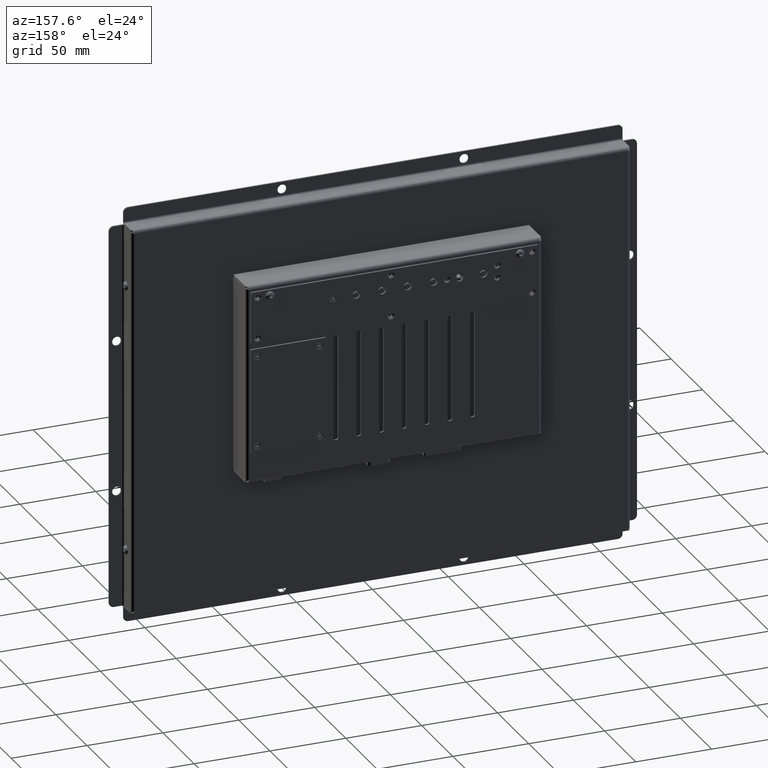
[diagram: clean part render]
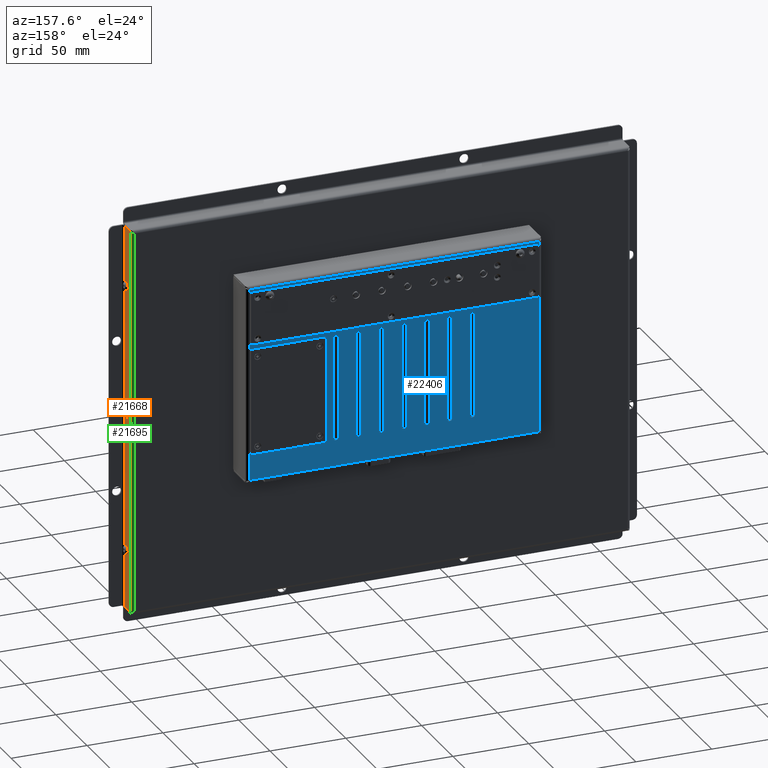
[diagram: same view with three faces highlighted in distinct colors, each labeled with its STEP entity id]
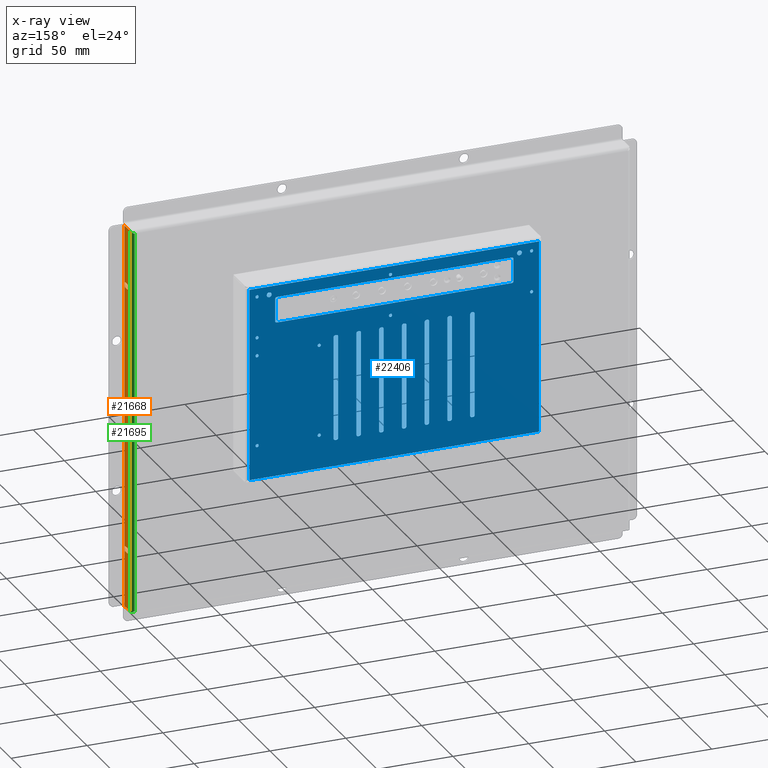
[diagram: x-ray of the same camera — body ghosted, the three highlighted faces saturated]
A machine part, auxiliary view with three faces highlighted in distinct colors.
The next image is the same camera in x-ray (body ghosted, the three faces saturated) — at least one of them is partly hidden behind the body in this view.
Their STEP definitions:

[orange] entity #21668 — the highlighted planar face has unit normal (-1, 0, -0).
#1406=FACE_BOUND('',#3706,.T.);
#1407=FACE_BOUND('',#3707,.T.);
#1774=PLANE('',#23404);
#2478=FACE_OUTER_BOUND('',#3705,.T.);
#3705=EDGE_LOOP('',(#15529,#15530,#15531,#15532));
#3706=EDGE_LOOP('',(#15533,#15534,#15535,#15536,#15537,#15538,#15539,#15540));
#3707=EDGE_LOOP('',(#15541,#15542,#15543,#15544,#15545,#15546,#15547,#15548));
#5154=LINE('',#31403,#7006);
#5158=LINE('',#31415,#7010);
#5162=LINE('',#31427,#7014);
#5166=LINE('',#31438,#7018);
#5170=LINE('',#31451,#7022);
#5174=LINE('',#31463,#7026);
#5178=LINE('',#31475,#7030);
#5182=LINE('',#31486,#7034);
#5311=LINE('',#31915,#7163);
#5318=LINE('',#31938,#7170);
#5319=LINE('',#31940,#7171);
#5320=LINE('',#31941,#7172);
#7006=VECTOR('',#25412,10.);
#7010=VECTOR('',#25424,10.);
#7014=VECTOR('',#25436,10.);
#7018=VECTOR('',#25448,10.);
#7022=VECTOR('',#25460,10.);
#7026=VECTOR('',#25472,10.);
#7030=VECTOR('',#25484,10.);
#7034=VECTOR('',#25496,10.);
#7163=VECTOR('',#25945,10.);
#7170=VECTOR('',#25974,10.);
#7171=VECTOR('',#25975,10.);
#7172=VECTOR('',#25976,10.);
#8824=CIRCLE('',#23203,0.999999999999996);
#8826=CIRCLE('',#23207,0.999999999999994);
#8828=CIRCLE('',#23211,0.999999999999996);
#8830=CIRCLE('',#23215,0.999999999999996);
#8832=CIRCLE('',#23219,1.00000000000002);
#8834=CIRCLE('',#23223,1.00000000000001);
#8836=CIRCLE('',#23227,1.00000000000001);
#8838=CIRCLE('',#23231,1.00000000000001);
#9794=VERTEX_POINT('',#31393);
#9795=VERTEX_POINT('',#31394);
#9798=VERTEX_POINT('',#31402);
#9800=VERTEX_POINT('',#31408);
#9802=VERTEX_POINT('',#31414);
#9804=VERTEX_POINT('',#31420);
#9806=VERTEX_POINT('',#31426);
#9808=VERTEX_POINT('',#31432);
#9810=VERTEX_POINT('',#31441);
#9811=VERTEX_POINT('',#31442);
#9814=VERTEX_POINT('',#31450);
#9816=VERTEX_POINT('',#31456);
#9818=VERTEX_POINT('',#31462);
#9820=VERTEX_POINT('',#31468);
#9822=VERTEX_POINT('',#31474);
#9824=VERTEX_POINT('',#31480);
#9964=VERTEX_POINT('',#31906);
#9965=VERTEX_POINT('',#31910);
#9970=VERTEX_POINT('',#31937);
#9971=VERTEX_POINT('',#31939);
#11928=EDGE_CURVE('',#9794,#9795,#8824,.T.);
#11932=EDGE_CURVE('',#9798,#9794,#5154,.T.);
#11935=EDGE_CURVE('',#9800,#9798,#8826,.T.);
#11938=EDGE_CURVE('',#9802,#9800,#5158,.T.);
#11941=EDGE_CURVE('',#9804,#9802,#8828,.T.);
#11944=EDGE_CURVE('',#9806,#9804,#5162,.T.);
#11947=EDGE_CURVE('',#9808,#9806,#8830,.T.);
#11950=EDGE_CURVE('',#9795,#9808,#5166,.T.);
#11952=EDGE_CURVE('',#9810,#9811,#8832,.T.);
#11956=EDGE_CURVE('',#9814,#9810,#5170,.T.);
#11959=EDGE_CURVE('',#9816,#9814,#8834,.T.);
#11962=EDGE_CURVE('',#9818,#9816,#5174,.T.);
#11965=EDGE_CURVE('',#9820,#9818,#8836,.T.);
#11968=EDGE_CURVE('',#9822,#9820,#5178,.T.);
#11971=EDGE_CURVE('',#9824,#9822,#8838,.T.);
#11974=EDGE_CURVE('',#9811,#9824,#5182,.T.);
#12187=EDGE_CURVE('',#9964,#9965,#5311,.T.);
#12198=EDGE_CURVE('',#9965,#9970,#5318,.T.);
#12199=EDGE_CURVE('',#9970,#9971,#5319,.T.);
#12200=EDGE_CURVE('',#9964,#9971,#5320,.T.);
#15529=ORIENTED_EDGE('',*,*,#12187,.T.);
#15530=ORIENTED_EDGE('',*,*,#12198,.T.);
#15531=ORIENTED_EDGE('',*,*,#12199,.T.);
#15532=ORIENTED_EDGE('',*,*,#12200,.F.);
#15533=ORIENTED_EDGE('',*,*,#11928,.T.);
#15534=ORIENTED_EDGE('',*,*,#11950,.T.);
#15535=ORIENTED_EDGE('',*,*,#11947,.T.);
#15536=ORIENTED_EDGE('',*,*,#11944,.T.);
#15537=ORIENTED_EDGE('',*,*,#11941,.T.);
#15538=ORIENTED_EDGE('',*,*,#11938,.T.);
#15539=ORIENTED_EDGE('',*,*,#11935,.T.);
#15540=ORIENTED_EDGE('',*,*,#11932,.T.);
#15541=ORIENTED_EDGE('',*,*,#11952,.T.);
#15542=ORIENTED_EDGE('',*,*,#11974,.T.);
#15543=ORIENTED_EDGE('',*,*,#11971,.T.);
#15544=ORIENTED_EDGE('',*,*,#11968,.T.);
#15545=ORIENTED_EDGE('',*,*,#11965,.T.);
#15546=ORIENTED_EDGE('',*,*,#11962,.T.);
#15547=ORIENTED_EDGE('',*,*,#11959,.T.);
#15548=ORIENTED_EDGE('',*,*,#11956,.T.);
#21668=ADVANCED_FACE('',(#2478,#1406,#1407),#1774,.F.);
#23203=AXIS2_PLACEMENT_3D('',#31395,#25404,#25405);
#23207=AXIS2_PLACEMENT_3D('',#31409,#25417,#25418);
#23211=AXIS2_PLACEMENT_3D('',#31421,#25429,#25430);
#23215=AXIS2_PLACEMENT_3D('',#31433,#25441,#25442);
#23219=AXIS2_PLACEMENT_3D('',#31443,#25452,#25453);
#23223=AXIS2_PLACEMENT_3D('',#31457,#25465,#25466);
#23227=AXIS2_PLACEMENT_3D('',#31469,#25477,#25478);
#23231=AXIS2_PLACEMENT_3D('',#31481,#25489,#25490);
#23404=AXIS2_PLACEMENT_3D('',#31936,#25972,#25973);
#25404=DIRECTION('center_axis',(-1.,-1.24732525066844E-18,-8.26411338742551E-15));
#25405=DIRECTION('ref_axis',(-9.70187209485073E-32,-1.,1.09282524669773E-17));
#25412=DIRECTION('',(1.24732525067141E-18,-1.,-3.59146089074741E-16));
#25417=DIRECTION('center_axis',(-1.,-1.24732525066844E-18,-8.26411338742551E-15));
#25418=DIRECTION('ref_axis',(8.88178419700113E-15,4.42996384603365E-15,
-1.));
#25424=DIRECTION('',(8.26411338742551E-15,-1.09282524669773E-17,-1.));
#25429=DIRECTION('center_axis',(-1.,-1.24732525066844E-18,-8.26411338742551E-15));
#25430=DIRECTION('ref_axis',(-1.96245039095769E-29,1.,2.20951779678333E-15));
#25436=DIRECTION('',(-1.24732525067446E-18,1.,7.29220430616463E-16));
#25441=DIRECTION('center_axis',(-1.,-1.24732525066844E-18,-8.26411338742551E-15));
#25442=DIRECTION('ref_axis',(-8.88178419700113E-15,1.09282524669773E-17,
1.));
#25448=DIRECTION('',(-8.26411338742551E-15,-1.4693691136999E-15,1.));
#25452=DIRECTION('center_axis',(-1.,-1.24732525066844E-18,-8.26411338742551E-15));
#25453=DIRECTION('ref_axis',(-9.70187209485055E-32,-1.,1.09282524669773E-17));
#25460=DIRECTION('',(1.24732525067141E-18,-1.,-3.5914608907471E-16));
#25465=DIRECTION('center_axis',(-1.,-1.24732525066844E-18,-8.26411338742551E-15));
#25466=DIRECTION('ref_axis',(8.88178419700113E-15,-1.09282524669773E-17,
-1.));
#25472=DIRECTION('',(8.26411338742551E-15,-1.09282524669773E-17,-1.));
#25477=DIRECTION('center_axis',(-1.,-1.24732525066844E-18,-8.26411338742551E-15));
#25478=DIRECTION('ref_axis',(-9.763742594314E-30,1.,1.09929477215816E-15));
#25484=DIRECTION('',(-1.24732525067446E-18,1.,7.29220430616397E-16));
#25489=DIRECTION('center_axis',(-1.,-1.24732525066844E-18,-8.26411338742551E-15));
#25490=DIRECTION('ref_axis',(-8.88178419700113E-15,1.09282524669773E-17,
1.));
#25496=DIRECTION('',(-8.26411338742551E-15,1.09282524669773E-17,1.));
#25945=DIRECTION('',(1.24732525066844E-18,-1.,1.10784736999074E-32));
#25972=DIRECTION('center_axis',(-1.,-1.24732525066844E-18,-8.26411338742551E-15));
#25973=DIRECTION('ref_axis',(-8.26411338742551E-15,0.,1.));
#25974=DIRECTION('',(8.88178419700126E-15,5.9211894646675E-15,-1.));
#25975=DIRECTION('',(-1.24732525066844E-18,1.,-1.10020970561212E-32));
#25976=DIRECTION('',(8.88178419700126E-15,8.88178419700126E-15,-1.));
#31393=CARTESIAN_POINT('',(164.5,-88.8000000000001,6.00000000000002));
#31394=CARTESIAN_POINT('',(164.5,-89.8000000000001,7.00000000000002));
#31395=CARTESIAN_POINT('Origin',(164.5,-88.8000000000001,7.00000000000002));
#31402=CARTESIAN_POINT('',(164.5,-87.3000000000001,6.00000000000002));
#31403=CARTESIAN_POINT('',(164.5,-43.6500000000001,6.00000000000003));
#31408=CARTESIAN_POINT('',(164.5,-86.3000000000001,7.00000000000002));
#31409=CARTESIAN_POINT('Origin',(164.5,-87.3000000000001,7.00000000000002));
#31414=CARTESIAN_POINT('',(164.5,-86.3000000000001,10.));
#31415=CARTESIAN_POINT('',(164.5,-86.3000000000001,8.43451332235383));
#31420=CARTESIAN_POINT('',(164.5,-87.3000000000001,11.));
#31421=CARTESIAN_POINT('Origin',(164.5,-87.3000000000001,10.));
#31426=CARTESIAN_POINT('',(164.5,-88.8000000000001,11.));
#31427=CARTESIAN_POINT('',(164.5,-44.4,11.0000000000001));
#31432=CARTESIAN_POINT('',(164.5,-89.8000000000001,10.));
#31433=CARTESIAN_POINT('Origin',(164.5,-88.8000000000001,10.));
#31438=CARTESIAN_POINT('',(164.5,-89.8000000000001,6.93451332235377));
#31441=CARTESIAN_POINT('',(164.5,87.1999999999997,6.00000000000001));
#31442=CARTESIAN_POINT('',(164.5,86.1999999999997,7.00000000000002));
#31443=CARTESIAN_POINT('Origin',(164.5,87.1999999999997,7.00000000000002));
#31450=CARTESIAN_POINT('',(164.5,88.6999999999998,6.00000000000002));
#31451=CARTESIAN_POINT('',(164.5,44.3499999999999,6.));
#31456=CARTESIAN_POINT('',(164.5,89.6999999999998,7.00000000000002));
#31457=CARTESIAN_POINT('Origin',(164.5,88.6999999999998,7.00000000000002));
#31462=CARTESIAN_POINT('',(164.5,89.6999999999998,10.));
#31463=CARTESIAN_POINT('',(164.5,89.6999999999998,8.43451332235383));
#31468=CARTESIAN_POINT('',(164.5,88.6999999999998,11.));
#31469=CARTESIAN_POINT('Origin',(164.5,88.6999999999998,10.));
#31474=CARTESIAN_POINT('',(164.5,87.1999999999997,11.));
#31475=CARTESIAN_POINT('',(164.5,43.5999999999998,11.));
#31480=CARTESIAN_POINT('',(164.5,86.1999999999997,10.));
#31481=CARTESIAN_POINT('Origin',(164.5,87.1999999999997,10.));
#31486=CARTESIAN_POINT('',(164.5,86.1999999999997,6.93451332235383));
#31906=CARTESIAN_POINT('',(164.5,126.99,12.));
#31910=CARTESIAN_POINT('',(164.5,-126.99,12.));
#31915=CARTESIAN_POINT('',(164.5,-63.495,12.));
#31936=CARTESIAN_POINT('Origin',(164.5,2.77555756156289E-15,6.86902664470765));
#31937=CARTESIAN_POINT('',(164.5,-126.99,2.00000000000006));
#31938=CARTESIAN_POINT('',(164.5,-126.99,2.00000000000004));
#31939=CARTESIAN_POINT('',(164.5,126.99,2.00000000000006));
#31940=CARTESIAN_POINT('',(164.5,1.38812803185163E-15,2.00000000000003));
#31941=CARTESIAN_POINT('',(164.5,126.99,2.00000000000004));

[blue] entity #22406 — the highlighted planar face has unit normal (0, 1, 0).
#1584=FACE_BOUND('',#4622,.T.);
#1585=FACE_BOUND('',#4623,.T.);
#1586=FACE_BOUND('',#4624,.T.);
#1587=FACE_BOUND('',#4625,.T.);
#1588=FACE_BOUND('',#4626,.T.);
#1589=FACE_BOUND('',#4627,.T.);
#1590=FACE_BOUND('',#4628,.T.);
#1591=FACE_BOUND('',#4629,.T.);
#1592=FACE_BOUND('',#4630,.T.);
#1593=FACE_BOUND('',#4631,.T.);
#1594=FACE_BOUND('',#4632,.T.);
#1595=FACE_BOUND('',#4633,.T.);
#1596=FACE_BOUND('',#4634,.T.);
#1597=FACE_BOUND('',#4635,.T.);
#1598=FACE_BOUND('',#4636,.T.);
#1599=FACE_BOUND('',#4637,.T.);
#1600=FACE_BOUND('',#4638,.T.);
#1601=FACE_BOUND('',#4639,.T.);
#1602=FACE_BOUND('',#4640,.T.);
#1603=FACE_BOUND('',#4641,.T.);
#2183=PLANE('',#24449);
#3216=FACE_OUTER_BOUND('',#4621,.T.);
#4621=EDGE_LOOP('',(#19515,#19516,#19517,#19518));
#4622=EDGE_LOOP('',(#19519,#19520));
#4623=EDGE_LOOP('',(#19521,#19522));
#4624=EDGE_LOOP('',(#19523,#19524));
#4625=EDGE_LOOP('',(#19525,#19526));
#4626=EDGE_LOOP('',(#19527,#19528));
#4627=EDGE_LOOP('',(#19529,#19530));
#4628=EDGE_LOOP('',(#19531,#19532,#19533,#19534,#19535,#19536,#19537,#19538));
#4629=EDGE_LOOP('',(#19539,#19540,#19541,#19542,#19543,#19544,#19545,#19546));
#4630=EDGE_LOOP('',(#19547,#19548,#19549,#19550,#19551,#19552,#19553,#19554));
#4631=EDGE_LOOP('',(#19555,#19556,#19557,#19558,#19559,#19560,#19561,#19562));
#4632=EDGE_LOOP('',(#19563,#19564,#19565,#19566,#19567,#19568,#19569,#19570));
#4633=EDGE_LOOP('',(#19571,#19572,#19573,#19574,#19575,#19576,#19577,#19578));
#4634=EDGE_LOOP('',(#19579,#19580,#19581,#19582,#19583,#19584,#19585,#19586));
#4635=EDGE_LOOP('',(#19587,#19588,#19589,#19590,#19591,#19592,#19593,#19594));
#4636=EDGE_LOOP('',(#19595));
#4637=EDGE_LOOP('',(#19596));
#4638=EDGE_LOOP('',(#19597));
#4639=EDGE_LOOP('',(#19598));
#4640=EDGE_LOOP('',(#19599));
#4641=EDGE_LOOP('',(#19600));
#6534=LINE('',#37887,#8386);
#6546=LINE('',#38227,#8398);
#6553=LINE('',#38408,#8405);
#6555=LINE('',#38411,#8407);
#6588=LINE('',#38559,#8440);
#6589=LINE('',#38563,#8441);
#6590=LINE('',#38567,#8442);
#6591=LINE('',#38570,#8443);
#6592=LINE('',#38575,#8444);
#6593=LINE('',#38579,#8445);
#6594=LINE('',#38583,#8446);
#6595=LINE('',#38586,#8447);
#6596=LINE('',#38591,#8448);
#6597=LINE('',#38595,#8449);
#6598=LINE('',#38599,#8450);
#6599=LINE('',#38602,#8451);
#6600=LINE('',#38607,#8452);
#6601=LINE('',#38611,#8453);
#6602=LINE('',#38615,#8454);
#6603=LINE('',#38618,#8455);
#6604=LINE('',#38623,#8456);
#6605=LINE('',#38627,#8457);
#6606=LINE('',#38631,#8458);
#6607=LINE('',#38634,#8459);
#6608=LINE('',#38639,#8460);
#6609=LINE('',#38643,#8461);
#6610=LINE('',#38647,#8462);
#6611=LINE('',#38650,#8463);
#6612=LINE('',#38655,#8464);
#6613=LINE('',#38659,#8465);
#6614=LINE('',#38663,#8466);
#6615=LINE('',#38666,#8467);
#6616=LINE('',#38671,#8468);
#6617=LINE('',#38675,#8469);
#6618=LINE('',#38679,#8470);
#6619=LINE('',#38682,#8471);
#8386=VECTOR('',#29174,10.);
#8398=VECTOR('',#29202,10.);
#8405=VECTOR('',#29215,10.);
#8407=VECTOR('',#29219,10.);
#8440=VECTOR('',#29336,10.);
#8441=VECTOR('',#29339,10.);
#8442=VECTOR('',#29342,10.);
#8443=VECTOR('',#29345,10.);
#8444=VECTOR('',#29348,10.);
#8445=VECTOR('',#29351,10.);
#8446=VECTOR('',#29354,10.);
#8447=VECTOR('',#29357,10.);
#8448=VECTOR('',#29360,10.);
#8449=VECTOR('',#29363,10.);
#8450=VECTOR('',#29366,10.);
#8451=VECTOR('',#29369,10.);
#8452=VECTOR('',#29372,10.);
#8453=VECTOR('',#29375,10.);
#8454=VECTOR('',#29378,10.);
#8455=VECTOR('',#29381,10.);
#8456=VECTOR('',#29384,10.);
#8457=VECTOR('',#29387,10.);
#8458=VECTOR('',#29390,10.);
#8459=VECTOR('',#29393,10.);
#8460=VECTOR('',#29396,10.);
#8461=VECTOR('',#29399,10.);
#8462=VECTOR('',#29402,10.);
#8463=VECTOR('',#29405,10.);
#8464=VECTOR('',#29408,10.);
#8465=VECTOR('',#29411,10.);
#8466=VECTOR('',#29414,10.);
#8467=VECTOR('',#29417,10.);
#8468=VECTOR('',#29420,10.);
#8469=VECTOR('',#29423,10.);
#8470=VECTOR('',#29426,10.);
#8471=VECTOR('',#29429,10.);
#9247=CIRCLE('',#24260,1.6);
#9248=CIRCLE('',#24261,1.6);
#9250=CIRCLE('',#24264,1.6);
#9251=CIRCLE('',#24265,1.6);
#9253=CIRCLE('',#24268,1.05);
#9254=CIRCLE('',#24269,1.05);
#9256=CIRCLE('',#24272,1.05);
#9257=CIRCLE('',#24273,1.05);
#9259=CIRCLE('',#24276,1.05);
#9260=CIRCLE('',#24277,1.05);
#9262=CIRCLE('',#24280,1.05);
#9263=CIRCLE('',#24281,1.05);
#9355=CIRCLE('',#24450,1.);
#9356=CIRCLE('',#24451,1.);
#9357=CIRCLE('',#24452,1.);
#9358=CIRCLE('',#24453,1.);
#9359=CIRCLE('',#24454,1.19999910351012);
#9360=CIRCLE('',#24455,1.19999910351011);
#9361=CIRCLE('',#24456,1.1999991035101);
#9362=CIRCLE('',#24457,1.19999910351012);
#9363=CIRCLE('',#24458,1.19999910351012);
#9364=CIRCLE('',#24459,1.19999910351011);
#9365=CIRCLE('',#24460,1.1999991035101);
#9366=CIRCLE('',#24461,1.19999910351012);
#9367=CIRCLE('',#24462,1.19999910351015);
#9368=CIRCLE('',#24463,1.19999910351011);
#9369=CIRCLE('',#24464,1.19999910351012);
#9370=CIRCLE('',#24465,1.19999910351012);
#9371=CIRCLE('',#24466,1.19999910351015);
#9372=CIRCLE('',#24467,1.19999910351011);
#9373=CIRCLE('',#24468,1.19999910351012);
#9374=CIRCLE('',#24469,1.19999910351012);
#9375=CIRCLE('',#24470,1.19999910351012);
#9376=CIRCLE('',#24471,1.19999910351011);
#9377=CIRCLE('',#24472,1.1999991035101);
#9378=CIRCLE('',#24473,1.19999910351012);
#9379=CIRCLE('',#24474,1.19999910351012);
#9380=CIRCLE('',#24475,1.19999910351011);
#9381=CIRCLE('',#24476,1.1999991035101);
#9382=CIRCLE('',#24477,1.19999910351012);
#9383=CIRCLE('',#24478,1.19999910351015);
#9384=CIRCLE('',#24479,1.19999910351011);
#9385=CIRCLE('',#24480,1.19999910351012);
#9386=CIRCLE('',#24481,1.19999910351012);
#9387=CIRCLE('',#24482,1.05);
#9388=CIRCLE('',#24483,1.05);
#9389=CIRCLE('',#24484,1.05);
#9390=CIRCLE('',#24485,1.05);
#9391=CIRCLE('',#24486,1.05);
#9392=CIRCLE('',#24487,1.05);
#11061=VERTEX_POINT('',#37450);
#11062=VERTEX_POINT('',#37451);
#11064=VERTEX_POINT('',#37458);
#11065=VERTEX_POINT('',#37459);
#11067=VERTEX_POINT('',#37466);
#11068=VERTEX_POINT('',#37467);
#11070=VERTEX_POINT('',#37474);
#11071=VERTEX_POINT('',#37475);
#11073=VERTEX_POINT('',#37482);
#11074=VERTEX_POINT('',#37483);
#11076=VERTEX_POINT('',#37490);
#11077=VERTEX_POINT('',#37491);
#11206=VERTEX_POINT('',#37871);
#11207=VERTEX_POINT('',#37879);
#11217=VERTEX_POINT('',#38211);
#11218=VERTEX_POINT('',#38219);
#11291=VERTEX_POINT('',#38555);
#11292=VERTEX_POINT('',#38556);
#11293=VERTEX_POINT('',#38558);
#11294=VERTEX_POINT('',#38560);
#11295=VERTEX_POINT('',#38562);
#11296=VERTEX_POINT('',#38564);
#11297=VERTEX_POINT('',#38566);
#11298=VERTEX_POINT('',#38568);
#11299=VERTEX_POINT('',#38571);
#11300=VERTEX_POINT('',#38572);
#11301=VERTEX_POINT('',#38574);
#11302=VERTEX_POINT('',#38576);
#11303=VERTEX_POINT('',#38578);
#11304=VERTEX_POINT('',#38580);
#11305=VERTEX_POINT('',#38582);
#11306=VERTEX_POINT('',#38584);
#11307=VERTEX_POINT('',#38587);
#11308=VERTEX_POINT('',#38588);
#11309=VERTEX_POINT('',#38590);
#11310=VERTEX_POINT('',#38592);
#11311=VERTEX_POINT('',#38594);
#11312=VERTEX_POINT('',#38596);
#11313=VERTEX_POINT('',#38598);
#11314=VERTEX_POINT('',#38600);
#11315=VERTEX_POINT('',#38603);
#11316=VERTEX_POINT('',#38604);
#11317=VERTEX_POINT('',#38606);
#11318=VERTEX_POINT('',#38608);
#11319=VERTEX_POINT('',#38610);
#11320=VERTEX_POINT('',#38612);
#11321=VERTEX_POINT('',#38614);
#11322=VERTEX_POINT('',#38616);
#11323=VERTEX_POINT('',#38619);
#11324=VERTEX_POINT('',#38620);
#11325=VERTEX_POINT('',#38622);
#11326=VERTEX_POINT('',#38624);
#11327=VERTEX_POINT('',#38626);
#11328=VERTEX_POINT('',#38628);
#11329=VERTEX_POINT('',#38630);
#11330=VERTEX_POINT('',#38632);
#11331=VERTEX_POINT('',#38635);
#11332=VERTEX_POINT('',#38636);
#11333=VERTEX_POINT('',#38638);
#11334=VERTEX_POINT('',#38640);
#11335=VERTEX_POINT('',#38642);
#11336=VERTEX_POINT('',#38644);
#11337=VERTEX_POINT('',#38646);
#11338=VERTEX_POINT('',#38648);
#11339=VERTEX_POINT('',#38651);
#11340=VERTEX_POINT('',#38652);
#11341=VERTEX_POINT('',#38654);
#11342=VERTEX_POINT('',#38656);
#11343=VERTEX_POINT('',#38658);
#11344=VERTEX_POINT('',#38660);
#11345=VERTEX_POINT('',#38662);
#11346=VERTEX_POINT('',#38664);
#11347=VERTEX_POINT('',#38667);
#11348=VERTEX_POINT('',#38668);
#11349=VERTEX_POINT('',#38670);
#11350=VERTEX_POINT('',#38672);
#11351=VERTEX_POINT('',#38674);
#11352=VERTEX_POINT('',#38676);
#11353=VERTEX_POINT('',#38678);
#11354=VERTEX_POINT('',#38680);
#11355=VERTEX_POINT('',#38683);
#11356=VERTEX_POINT('',#38685);
#11357=VERTEX_POINT('',#38687);
#11358=VERTEX_POINT('',#38689);
#11359=VERTEX_POINT('',#38691);
#11360=VERTEX_POINT('',#38693);
#13827=EDGE_CURVE('',#11061,#11062,#9247,.T.);
#13828=EDGE_CURVE('',#11062,#11061,#9248,.T.);
#13831=EDGE_CURVE('',#11064,#11065,#9250,.T.);
#13832=EDGE_CURVE('',#11065,#11064,#9251,.T.);
#13835=EDGE_CURVE('',#11067,#11068,#9253,.T.);
#13836=EDGE_CURVE('',#11068,#11067,#9254,.T.);
#13839=EDGE_CURVE('',#11070,#11071,#9256,.T.);
#13840=EDGE_CURVE('',#11071,#11070,#9257,.T.);
#13843=EDGE_CURVE('',#11073,#11074,#9259,.T.);
#13844=EDGE_CURVE('',#11074,#11073,#9260,.T.);
#13847=EDGE_CURVE('',#11076,#11077,#9262,.T.);
#13848=EDGE_CURVE('',#11077,#11076,#9263,.T.);
#14038=EDGE_CURVE('',#11206,#11207,#6534,.T.);
#14065=EDGE_CURVE('',#11217,#11218,#6546,.T.);
#14079=EDGE_CURVE('',#11218,#11206,#6553,.T.);
#14081=EDGE_CURVE('',#11207,#11217,#6555,.T.);
#14152=EDGE_CURVE('',#11291,#11292,#9355,.T.);
#14153=EDGE_CURVE('',#11292,#11293,#6588,.T.);
#14154=EDGE_CURVE('',#11293,#11294,#9356,.T.);
#14155=EDGE_CURVE('',#11294,#11295,#6589,.T.);
#14156=EDGE_CURVE('',#11295,#11296,#9357,.T.);
#14157=EDGE_CURVE('',#11296,#11297,#6590,.T.);
#14158=EDGE_CURVE('',#11297,#11298,#9358,.T.);
#14159=EDGE_CURVE('',#11298,#11291,#6591,.T.);
#14160=EDGE_CURVE('',#11299,#11300,#9359,.T.);
#14161=EDGE_CURVE('',#11300,#11301,#6592,.T.);
#14162=EDGE_CURVE('',#11301,#11302,#9360,.T.);
#14163=EDGE_CURVE('',#11302,#11303,#6593,.T.);
#14164=EDGE_CURVE('',#11303,#11304,#9361,.T.);
#14165=EDGE_CURVE('',#11304,#11305,#6594,.T.);
#14166=EDGE_CURVE('',#11305,#11306,#9362,.T.);
#14167=EDGE_CURVE('',#11306,#11299,#6595,.T.);
#14168=EDGE_CURVE('',#11307,#11308,#9363,.T.);
#14169=EDGE_CURVE('',#11308,#11309,#6596,.T.);
#14170=EDGE_CURVE('',#11309,#11310,#9364,.T.);
#14171=EDGE_CURVE('',#11310,#11311,#6597,.T.);
#14172=EDGE_CURVE('',#11311,#11312,#9365,.T.);
#14173=EDGE_CURVE('',#11312,#11313,#6598,.T.);
#14174=EDGE_CURVE('',#11313,#11314,#9366,.T.);
#14175=EDGE_CURVE('',#11314,#11307,#6599,.T.);
#14176=EDGE_CURVE('',#11315,#11316,#9367,.T.);
#14177=EDGE_CURVE('',#11316,#11317,#6600,.T.);
#14178=EDGE_CURVE('',#11317,#11318,#9368,.T.);
#14179=EDGE_CURVE('',#11318,#11319,#6601,.T.);
#14180=EDGE_CURVE('',#11319,#11320,#9369,.T.);
#14181=EDGE_CURVE('',#11320,#11321,#6602,.T.);
#14182=EDGE_CURVE('',#11321,#11322,#9370,.T.);
#14183=EDGE_CURVE('',#11322,#11315,#6603,.T.);
#14184=EDGE_CURVE('',#11323,#11324,#9371,.T.);
#14185=EDGE_CURVE('',#11324,#11325,#6604,.T.);
#14186=EDGE_CURVE('',#11325,#11326,#9372,.T.);
#14187=EDGE_CURVE('',#11326,#11327,#6605,.T.);
#14188=EDGE_CURVE('',#11327,#11328,#9373,.T.);
#14189=EDGE_CURVE('',#11328,#11329,#6606,.T.);
#14190=EDGE_CURVE('',#11329,#11330,#9374,.T.);
#14191=EDGE_CURVE('',#11330,#11323,#6607,.T.);
#14192=EDGE_CURVE('',#11331,#11332,#9375,.T.);
#14193=EDGE_CURVE('',#11332,#11333,#6608,.T.);
#14194=EDGE_CURVE('',#11333,#11334,#9376,.T.);
#14195=EDGE_CURVE('',#11334,#11335,#6609,.T.);
#14196=EDGE_CURVE('',#11335,#11336,#9377,.T.);
#14197=EDGE_CURVE('',#11336,#11337,#6610,.T.);
#14198=EDGE_CURVE('',#11337,#11338,#9378,.T.);
#14199=EDGE_CURVE('',#11338,#11331,#6611,.T.);
#14200=EDGE_CURVE('',#11339,#11340,#9379,.T.);
#14201=EDGE_CURVE('',#11340,#11341,#6612,.T.);
#14202=EDGE_CURVE('',#11341,#11342,#9380,.T.);
#14203=EDGE_CURVE('',#11342,#11343,#6613,.T.);
#14204=EDGE_CURVE('',#11343,#11344,#9381,.T.);
#14205=EDGE_CURVE('',#11344,#11345,#6614,.T.);
#14206=EDGE_CURVE('',#11345,#11346,#9382,.T.);
#14207=EDGE_CURVE('',#11346,#11339,#6615,.T.);
#14208=EDGE_CURVE('',#11347,#11348,#9383,.T.);
#14209=EDGE_CURVE('',#11348,#11349,#6616,.T.);
#14210=EDGE_CURVE('',#11349,#11350,#9384,.T.);
#14211=EDGE_CURVE('',#11350,#11351,#6617,.T.);
#14212=EDGE_CURVE('',#11351,#11352,#9385,.T.);
#14213=EDGE_CURVE('',#11352,#11353,#6618,.T.);
#14214=EDGE_CURVE('',#11353,#11354,#9386,.T.);
#14215=EDGE_CURVE('',#11354,#11347,#6619,.T.);
#14216=EDGE_CURVE('',#11355,#11355,#9387,.T.);
#14217=EDGE_CURVE('',#11356,#11356,#9388,.T.);
#14218=EDGE_CURVE('',#11357,#11357,#9389,.T.);
#14219=EDGE_CURVE('',#11358,#11358,#9390,.T.);
#14220=EDGE_CURVE('',#11359,#11359,#9391,.T.);
#14221=EDGE_CURVE('',#11360,#11360,#9392,.T.);
#19515=ORIENTED_EDGE('',*,*,#14079,.T.);
#19516=ORIENTED_EDGE('',*,*,#14038,.T.);
#19517=ORIENTED_EDGE('',*,*,#14081,.T.);
#19518=ORIENTED_EDGE('',*,*,#14065,.T.);
#19519=ORIENTED_EDGE('',*,*,#13827,.T.);
#19520=ORIENTED_EDGE('',*,*,#13828,.T.);
#19521=ORIENTED_EDGE('',*,*,#13831,.T.);
#19522=ORIENTED_EDGE('',*,*,#13832,.T.);
#19523=ORIENTED_EDGE('',*,*,#13835,.T.);
#19524=ORIENTED_EDGE('',*,*,#13836,.T.);
#19525=ORIENTED_EDGE('',*,*,#13839,.T.);
#19526=ORIENTED_EDGE('',*,*,#13840,.T.);
#19527=ORIENTED_EDGE('',*,*,#13843,.T.);
#19528=ORIENTED_EDGE('',*,*,#13844,.T.);
#19529=ORIENTED_EDGE('',*,*,#13847,.T.);
#19530=ORIENTED_EDGE('',*,*,#13848,.T.);
#19531=ORIENTED_EDGE('',*,*,#14152,.T.);
#19532=ORIENTED_EDGE('',*,*,#14153,.T.);
#19533=ORIENTED_EDGE('',*,*,#14154,.T.);
#19534=ORIENTED_EDGE('',*,*,#14155,.T.);
#19535=ORIENTED_EDGE('',*,*,#14156,.T.);
#19536=ORIENTED_EDGE('',*,*,#14157,.T.);
#19537=ORIENTED_EDGE('',*,*,#14158,.T.);
#19538=ORIENTED_EDGE('',*,*,#14159,.T.);
#19539=ORIENTED_EDGE('',*,*,#14160,.T.);
#19540=ORIENTED_EDGE('',*,*,#14161,.T.);
#19541=ORIENTED_EDGE('',*,*,#14162,.T.);
#19542=ORIENTED_EDGE('',*,*,#14163,.T.);
#19543=ORIENTED_EDGE('',*,*,#14164,.T.);
#19544=ORIENTED_EDGE('',*,*,#14165,.T.);
#19545=ORIENTED_EDGE('',*,*,#14166,.T.);
#19546=ORIENTED_EDGE('',*,*,#14167,.T.);
#19547=ORIENTED_EDGE('',*,*,#14168,.T.);
#19548=ORIENTED_EDGE('',*,*,#14169,.T.);
#19549=ORIENTED_EDGE('',*,*,#14170,.T.);
#19550=ORIENTED_EDGE('',*,*,#14171,.T.);
#19551=ORIENTED_EDGE('',*,*,#14172,.T.);
#19552=ORIENTED_EDGE('',*,*,#14173,.T.);
#19553=ORIENTED_EDGE('',*,*,#14174,.T.);
#19554=ORIENTED_EDGE('',*,*,#14175,.T.);
#19555=ORIENTED_EDGE('',*,*,#14176,.T.);
#19556=ORIENTED_EDGE('',*,*,#14177,.T.);
#19557=ORIENTED_EDGE('',*,*,#14178,.T.);
#19558=ORIENTED_EDGE('',*,*,#14179,.T.);
#19559=ORIENTED_EDGE('',*,*,#14180,.T.);
#19560=ORIENTED_EDGE('',*,*,#14181,.T.);
#19561=ORIENTED_EDGE('',*,*,#14182,.T.);
#19562=ORIENTED_EDGE('',*,*,#14183,.T.);
#19563=ORIENTED_EDGE('',*,*,#14184,.T.);
#19564=ORIENTED_EDGE('',*,*,#14185,.T.);
#19565=ORIENTED_EDGE('',*,*,#14186,.T.);
#19566=ORIENTED_EDGE('',*,*,#14187,.T.);
#19567=ORIENTED_EDGE('',*,*,#14188,.T.);
#19568=ORIENTED_EDGE('',*,*,#14189,.T.);
#19569=ORIENTED_EDGE('',*,*,#14190,.T.);
#19570=ORIENTED_EDGE('',*,*,#14191,.T.);
#19571=ORIENTED_EDGE('',*,*,#14192,.T.);
#19572=ORIENTED_EDGE('',*,*,#14193,.T.);
#19573=ORIENTED_EDGE('',*,*,#14194,.T.);
#19574=ORIENTED_EDGE('',*,*,#14195,.T.);
#19575=ORIENTED_EDGE('',*,*,#14196,.T.);
#19576=ORIENTED_EDGE('',*,*,#14197,.T.);
#19577=ORIENTED_EDGE('',*,*,#14198,.T.);
#19578=ORIENTED_EDGE('',*,*,#14199,.T.);
#19579=ORIENTED_EDGE('',*,*,#14200,.T.);
#19580=ORIENTED_EDGE('',*,*,#14201,.T.);
#19581=ORIENTED_EDGE('',*,*,#14202,.T.);
#19582=ORIENTED_EDGE('',*,*,#14203,.T.);
#19583=ORIENTED_EDGE('',*,*,#14204,.T.);
#19584=ORIENTED_EDGE('',*,*,#14205,.T.);
#19585=ORIENTED_EDGE('',*,*,#14206,.T.);
#19586=ORIENTED_EDGE('',*,*,#14207,.T.);
#19587=ORIENTED_EDGE('',*,*,#14208,.T.);
#19588=ORIENTED_EDGE('',*,*,#14209,.T.);
#19589=ORIENTED_EDGE('',*,*,#14210,.T.);
#19590=ORIENTED_EDGE('',*,*,#14211,.T.);
#19591=ORIENTED_EDGE('',*,*,#14212,.T.);
#19592=ORIENTED_EDGE('',*,*,#14213,.T.);
#19593=ORIENTED_EDGE('',*,*,#14214,.T.);
#19594=ORIENTED_EDGE('',*,*,#14215,.T.);
#19595=ORIENTED_EDGE('',*,*,#14216,.T.);
#19596=ORIENTED_EDGE('',*,*,#14217,.T.);
#19597=ORIENTED_EDGE('',*,*,#14218,.T.);
#19598=ORIENTED_EDGE('',*,*,#14219,.T.);
#19599=ORIENTED_EDGE('',*,*,#14220,.T.);
#19600=ORIENTED_EDGE('',*,*,#14221,.T.);
#22406=ADVANCED_FACE('',(#3216,#1584,#1585,#1586,#1587,#1588,#1589,#1590,
#1591,#1592,#1593,#1594,#1595,#1596,#1597,#1598,#1599,#1600,#1601,#1602,
#1603),#2183,.T.);
#24260=AXIS2_PLACEMENT_3D('',#37452,#28761,#28762);
#24261=AXIS2_PLACEMENT_3D('',#37453,#28763,#28764);
#24264=AXIS2_PLACEMENT_3D('',#37460,#28770,#28771);
#24265=AXIS2_PLACEMENT_3D('',#37461,#28772,#28773);
#24268=AXIS2_PLACEMENT_3D('',#37468,#28779,#28780);
#24269=AXIS2_PLACEMENT_3D('',#37469,#28781,#28782);
#24272=AXIS2_PLACEMENT_3D('',#37476,#28788,#28789);
#24273=AXIS2_PLACEMENT_3D('',#37477,#28790,#28791);
#24276=AXIS2_PLACEMENT_3D('',#37484,#28797,#28798);
#24277=AXIS2_PLACEMENT_3D('',#37485,#28799,#28800);
#24280=AXIS2_PLACEMENT_3D('',#37492,#28806,#28807);
#24281=AXIS2_PLACEMENT_3D('',#37493,#28808,#28809);
#24449=AXIS2_PLACEMENT_3D('',#38554,#29332,#29333);
#24450=AXIS2_PLACEMENT_3D('',#38557,#29334,#29335);
#24451=AXIS2_PLACEMENT_3D('',#38561,#29337,#29338);
#24452=AXIS2_PLACEMENT_3D('',#38565,#29340,#29341);
#24453=AXIS2_PLACEMENT_3D('',#38569,#29343,#29344);
#24454=AXIS2_PLACEMENT_3D('',#38573,#29346,#29347);
#24455=AXIS2_PLACEMENT_3D('',#38577,#29349,#29350);
#24456=AXIS2_PLACEMENT_3D('',#38581,#29352,#29353);
#24457=AXIS2_PLACEMENT_3D('',#38585,#29355,#29356);
#24458=AXIS2_PLACEMENT_3D('',#38589,#29358,#29359);
#24459=AXIS2_PLACEMENT_3D('',#38593,#29361,#29362);
#24460=AXIS2_PLACEMENT_3D('',#38597,#29364,#29365);
#24461=AXIS2_PLACEMENT_3D('',#38601,#29367,#29368);
#24462=AXIS2_PLACEMENT_3D('',#38605,#29370,#29371);
#24463=AXIS2_PLACEMENT_3D('',#38609,#29373,#29374);
#24464=AXIS2_PLACEMENT_3D('',#38613,#29376,#29377);
#24465=AXIS2_PLACEMENT_3D('',#38617,#29379,#29380);
#24466=AXIS2_PLACEMENT_3D('',#38621,#29382,#29383);
#24467=AXIS2_PLACEMENT_3D('',#38625,#29385,#29386);
#24468=AXIS2_PLACEMENT_3D('',#38629,#29388,#29389);
#24469=AXIS2_PLACEMENT_3D('',#38633,#29391,#29392);
#24470=AXIS2_PLACEMENT_3D('',#38637,#29394,#29395);
#24471=AXIS2_PLACEMENT_3D('',#38641,#29397,#29398);
#24472=AXIS2_PLACEMENT_3D('',#38645,#29400,#29401);
#24473=AXIS2_PLACEMENT_3D('',#38649,#29403,#29404);
#24474=AXIS2_PLACEMENT_3D('',#38653,#29406,#29407);
#24475=AXIS2_PLACEMENT_3D('',#38657,#29409,#29410);
#24476=AXIS2_PLACEMENT_3D('',#38661,#29412,#29413);
#24477=AXIS2_PLACEMENT_3D('',#38665,#29415,#29416);
#24478=AXIS2_PLACEMENT_3D('',#38669,#29418,#29419);
#24479=AXIS2_PLACEMENT_3D('',#38673,#29421,#29422);
#24480=AXIS2_PLACEMENT_3D('',#38677,#29424,#29425);
#24481=AXIS2_PLACEMENT_3D('',#38681,#29427,#29428);
#24482=AXIS2_PLACEMENT_3D('',#38684,#29430,#29431);
#24483=AXIS2_PLACEMENT_3D('',#38686,#29432,#29433);
#24484=AXIS2_PLACEMENT_3D('',#38688,#29434,#29435);
#24485=AXIS2_PLACEMENT_3D('',#38690,#29436,#29437);
#24486=AXIS2_PLACEMENT_3D('',#38692,#29438,#29439);
#24487=AXIS2_PLACEMENT_3D('',#38694,#29440,#29441);
#28761=DIRECTION('center_axis',(0.,0.,-1.));
#28762=DIRECTION('ref_axis',(1.,0.,0.));
#28763=DIRECTION('center_axis',(0.,0.,-1.));
#28764=DIRECTION('ref_axis',(1.,0.,0.));
#28770=DIRECTION('center_axis',(0.,0.,-1.));
#28771=DIRECTION('ref_axis',(1.,0.,0.));
#28772=DIRECTION('center_axis',(0.,0.,-1.));
#28773=DIRECTION('ref_axis',(1.,0.,0.));
#28779=DIRECTION('center_axis',(0.,0.,-1.));
#28780=DIRECTION('ref_axis',(1.,0.,0.));
#28781=DIRECTION('center_axis',(0.,0.,-1.));
#28782=DIRECTION('ref_axis',(1.,0.,0.));
#28788=DIRECTION('center_axis',(0.,0.,-1.));
#28789=DIRECTION('ref_axis',(1.,0.,0.));
#28790=DIRECTION('center_axis',(0.,0.,-1.));
#28791=DIRECTION('ref_axis',(1.,0.,0.));
#28797=DIRECTION('center_axis',(0.,0.,-1.));
#28798=DIRECTION('ref_axis',(1.,0.,0.));
#28799=DIRECTION('center_axis',(0.,0.,-1.));
#28800=DIRECTION('ref_axis',(1.,0.,0.));
#28806=DIRECTION('center_axis',(0.,0.,-1.));
#28807=DIRECTION('ref_axis',(1.,0.,0.));
#28808=DIRECTION('center_axis',(0.,0.,-1.));
#28809=DIRECTION('ref_axis',(1.,0.,0.));
#29174=DIRECTION('',(-1.,0.,0.));
#29202=DIRECTION('',(1.,0.,0.));
#29215=DIRECTION('',(0.,1.,0.));
#29219=DIRECTION('',(0.,-1.,0.));
#29332=DIRECTION('center_axis',(0.,0.,1.));
#29333=DIRECTION('ref_axis',(1.,0.,0.));
#29334=DIRECTION('center_axis',(0.,0.,-1.));
#29335=DIRECTION('ref_axis',(0.,-1.,0.));
#29336=DIRECTION('',(1.,-1.14603665953337E-16,0.));
#29337=DIRECTION('center_axis',(0.,0.,-1.));
#29338=DIRECTION('ref_axis',(-1.,2.84217094304119E-13,0.));
#29339=DIRECTION('',(1.89478043995448E-14,-1.,0.));
#29340=DIRECTION('center_axis',(0.,0.,-1.));
#29341=DIRECTION('ref_axis',(0.,1.,0.));
#29342=DIRECTION('',(-1.,-1.8336586552534E-15,0.));
#29343=DIRECTION('center_axis',(0.,0.,-1.));
#29344=DIRECTION('ref_axis',(1.,0.,0.));
#29345=DIRECTION('',(0.,1.,0.));
#29346=DIRECTION('center_axis',(0.,0.,-1.));
#29347=DIRECTION('ref_axis',(-4.44089541619556E-14,-1.,0.));
#29348=DIRECTION('',(1.,-6.36525965320733E-13,0.));
#29349=DIRECTION('center_axis',(0.,0.,-1.));
#29350=DIRECTION('ref_axis',(-1.,5.74355807156816E-12,0.));
#29351=DIRECTION('',(-8.43506701662086E-14,-1.,0.));
#29352=DIRECTION('center_axis',(0.,0.,-1.));
#29353=DIRECTION('ref_axis',(4.44089541616801E-14,1.,0.));
#29354=DIRECTION('',(-1.,-5.10701065199163E-13,0.));
#29355=DIRECTION('center_axis',(0.,0.,-1.));
#29356=DIRECTION('ref_axis',(1.,5.4919073313453E-12,0.));
#29357=DIRECTION('',(9.40733330825629E-14,1.,0.));
#29358=DIRECTION('center_axis',(0.,0.,-1.));
#29359=DIRECTION('ref_axis',(-3.74515513433207E-12,-1.,0.));
#29360=DIRECTION('',(1.,1.4802929426172E-13,0.));
#29361=DIRECTION('center_axis',(0.,0.,-1.));
#29362=DIRECTION('ref_axis',(-1.,5.04041629734946E-12,0.));
#29363=DIRECTION('',(-6.07009495588609E-14,-1.,0.));
#29364=DIRECTION('center_axis',(0.,0.,-1.));
#29365=DIRECTION('ref_axis',(4.44089541616317E-14,1.,0.));
#29366=DIRECTION('',(-1.,-4.85536085174835E-12,0.));
#29367=DIRECTION('center_axis',(0.,0.,-1.));
#29368=DIRECTION('ref_axis',(1.,4.46217470671802E-12,0.));
#29369=DIRECTION('',(7.69929793105892E-14,1.,0.));
#29370=DIRECTION('center_axis',(0.,0.,-1.));
#29371=DIRECTION('ref_axis',(-4.54451630922643E-12,-1.,0.));
#29372=DIRECTION('',(1.,-5.92117177047907E-13,0.));
#29373=DIRECTION('center_axis',(0.,0.,-1.));
#29374=DIRECTION('ref_axis',(-1.,1.55431339565721E-13,0.));
#29375=DIRECTION('',(-7.43652325764394E-14,-1.,0.));
#29376=DIRECTION('center_axis',(0.,0.,-1.));
#29377=DIRECTION('ref_axis',(7.40149236030522E-14,1.,0.));
#29378=DIRECTION('',(-1.,-4.73693741634062E-13,0.));
#29379=DIRECTION('center_axis',(0.,0.,-1.));
#29380=DIRECTION('ref_axis',(1.,1.94936805039497E-12,0.));
#29381=DIRECTION('',(6.75330910676475E-14,1.,0.));
#29382=DIRECTION('center_axis',(0.,0.,-1.));
#29383=DIRECTION('ref_axis',(-3.78956408847852E-12,-1.,0.));
#29384=DIRECTION('',(1.,-8.28964047865769E-13,0.));
#29385=DIRECTION('center_axis',(0.,0.,-1.));
#29386=DIRECTION('ref_axis',(-1.,9.47391022115569E-13,0.));
#29387=DIRECTION('',(-6.12264989056882E-14,-1.,0.));
#29388=DIRECTION('center_axis',(0.,0.,-1.));
#29389=DIRECTION('ref_axis',(7.40149236028471E-14,1.,0.));
#29390=DIRECTION('',(-1.,-4.88496671060141E-13,0.));
#29391=DIRECTION('center_axis',(0.,0.,-1.));
#29392=DIRECTION('ref_axis',(1.,2.9226642957749E-12,0.));
#29393=DIRECTION('',(7.80440780042462E-14,1.,0.));
#29394=DIRECTION('center_axis',(0.,0.,-1.));
#29395=DIRECTION('ref_axis',(-4.84057600364879E-12,-1.,0.));
#29396=DIRECTION('',(1.,6.21723035900633E-13,0.));
#29397=DIRECTION('center_axis',(0.,0.,-1.));
#29398=DIRECTION('ref_axis',(-1.,2.26485666224275E-12,0.));
#29399=DIRECTION('',(-7.90951766979065E-14,-1.,0.));
#29400=DIRECTION('center_axis',(0.,0.,-1.));
#29401=DIRECTION('ref_axis',(1.03620893043869E-13,1.,0.));
#29402=DIRECTION('',(-1.,-4.73693741634062E-13,0.));
#29403=DIRECTION('center_axis',(0.,0.,-1.));
#29404=DIRECTION('ref_axis',(1.,2.92729022850004E-12,0.));
#29405=DIRECTION('',(6.43797949866684E-14,1.,0.));
#29406=DIRECTION('center_axis',(0.,0.,-1.));
#29407=DIRECTION('ref_axis',(-4.55931929396064E-12,-1.,0.));
#29408=DIRECTION('',(1.,9.32584553850481E-13,0.));
#29409=DIRECTION('center_axis',(0.,0.,-1.));
#29410=DIRECTION('ref_axis',(-1.,3.13823276075541E-12,0.));
#29411=DIRECTION('',(-7.51535565966833E-14,-1.,0.));
#29412=DIRECTION('center_axis',(0.,0.,-1.));
#29413=DIRECTION('ref_axis',(8.8817908323332E-14,1.,0.));
#29414=DIRECTION('',(-1.,-4.6629227692103E-13,0.));
#29415=DIRECTION('center_axis',(0.,0.,-1.));
#29416=DIRECTION('ref_axis',(1.,2.63585646681305E-12,0.));
#29417=DIRECTION('',(6.41170203132546E-14,1.,0.));
#29418=DIRECTION('center_axis',(0.,0.,-1.));
#29419=DIRECTION('ref_axis',(-2.96059694412215E-14,-1.,0.));
#29420=DIRECTION('',(1.,-5.92117177042595E-14,0.));
#29421=DIRECTION('center_axis',(0.,0.,-1.));
#29422=DIRECTION('ref_axis',(-1.,3.55271633294653E-13,0.));
#29423=DIRECTION('',(-3.99417503590772E-14,-1.,0.));
#29424=DIRECTION('center_axis',(0.,0.,-1.));
#29425=DIRECTION('ref_axis',(5.92119388824425E-14,1.,0.));
#29426=DIRECTION('',(-1.,6.29124500607757E-14,0.));
#29427=DIRECTION('center_axis',(0.,0.,-1.));
#29428=DIRECTION('ref_axis',(1.,0.,0.));
#29429=DIRECTION('',(0.,1.,0.));
#29430=DIRECTION('center_axis',(0.,0.,-1.));
#29431=DIRECTION('ref_axis',(-1.,0.,0.));
#29432=DIRECTION('center_axis',(0.,0.,-1.));
#29433=DIRECTION('ref_axis',(-1.,0.,0.));
#29434=DIRECTION('center_axis',(0.,0.,-1.));
#29435=DIRECTION('ref_axis',(-1.,0.,0.));
#29436=DIRECTION('center_axis',(0.,0.,-1.));
#29437=DIRECTION('ref_axis',(-1.,0.,0.));
#29438=DIRECTION('center_axis',(0.,0.,-1.));
#29439=DIRECTION('ref_axis',(-1.,0.,0.));
#29440=DIRECTION('center_axis',(0.,0.,-1.));
#29441=DIRECTION('ref_axis',(-1.,0.,0.));
#37450=CARTESIAN_POINT('',(-205.07547,94.281676,1.));
#37451=CARTESIAN_POINT('',(-208.27547,94.281676,1.00000000000001));
#37452=CARTESIAN_POINT('Origin',(-206.67547,94.281676,1.00000000000001));
#37453=CARTESIAN_POINT('Origin',(-206.67547,94.281676,1.00000000000001));
#37458=CARTESIAN_POINT('',(-40.0754700000001,94.281676,1.));
#37459=CARTESIAN_POINT('',(-43.2754700000001,94.281676,1.00000000000001));
#37460=CARTESIAN_POINT('Origin',(-41.6754700000001,94.281676,1.00000000000001));
#37461=CARTESIAN_POINT('Origin',(-41.6754700000001,94.281676,1.00000000000001));
#37466=CARTESIAN_POINT('',(-32.6300000000011,94.2800000000002,1.));
#37467=CARTESIAN_POINT('',(-34.7300000000011,94.2800000000002,1.00000000000001));
#37468=CARTESIAN_POINT('Origin',(-33.6800000000011,94.2800000000002,1.00000000000001));
#37469=CARTESIAN_POINT('Origin',(-33.6800000000011,94.2800000000002,1.00000000000001));
#37474=CARTESIAN_POINT('',(-213.629999999999,94.2799999999999,1.));
#37475=CARTESIAN_POINT('',(-215.729999999999,94.2799999999999,1.00000000000001));
#37476=CARTESIAN_POINT('Origin',(-214.679999999999,94.2799999999999,1.00000000000001));
#37477=CARTESIAN_POINT('Origin',(-214.679999999999,94.2799999999999,1.00000000000001));
#37482=CARTESIAN_POINT('',(-213.629999999999,67.0000000000002,1.));
#37483=CARTESIAN_POINT('',(-215.729999999999,67.0000000000002,1.00000000000001));
#37484=CARTESIAN_POINT('Origin',(-214.679999999999,67.0000000000002,1.00000000000001));
#37485=CARTESIAN_POINT('Origin',(-214.679999999999,67.0000000000002,1.00000000000001));
#37490=CARTESIAN_POINT('',(-32.6300000000011,67.0000000000005,1.));
#37491=CARTESIAN_POINT('',(-34.7300000000011,67.0000000000005,1.00000000000001));
#37492=CARTESIAN_POINT('Origin',(-33.6800000000011,67.0000000000005,1.00000000000001));
#37493=CARTESIAN_POINT('Origin',(-33.6800000000011,67.0000000000005,1.00000000000001));
#37871=CARTESIAN_POINT('',(-28.6754700000001,99.781676,1.));
#37879=CARTESIAN_POINT('',(-219.67547,99.781676,1.));
#37887=CARTESIAN_POINT('',(-75.4232134154671,99.781676,1.));
#38211=CARTESIAN_POINT('',(-219.67547,-27.218324,1.));
#38219=CARTESIAN_POINT('',(-28.6754700000001,-27.218324,1.));
#38227=CARTESIAN_POINT('',(-172.923213415467,-27.218324,1.));
#38408=CARTESIAN_POINT('',(-28.6754700000001,4.53167600000001,1.));
#38411=CARTESIAN_POINT('',(-219.67547,68.031676,1.));
#38554=CARTESIAN_POINT('Origin',(-124.170956830934,36.281676,1.));
#38555=CARTESIAN_POINT('',(-202.68,91.0000007470752,1.));
#38556=CARTESIAN_POINT('',(-201.68,92.0000007470752,1.));
#38557=CARTESIAN_POINT('Origin',(-201.68,91.0000007470752,1.));
#38558=CARTESIAN_POINT('',(-46.6799985058485,92.0000007470752,1.));
#38559=CARTESIAN_POINT('',(-162.925478415467,92.0000007470752,1.));
#38560=CARTESIAN_POINT('',(-45.6799985058488,91.0000007470752,1.));
#38561=CARTESIAN_POINT('Origin',(-46.6799985058485,91.0000007470755,1.));
#38562=CARTESIAN_POINT('',(-45.6799985058485,75.9999992529249,1.));
#38563=CARTESIAN_POINT('',(-45.6799985058483,63.6408383735384,1.));
#38564=CARTESIAN_POINT('',(-46.6799985058485,74.9999992529251,1.));
#38565=CARTESIAN_POINT('Origin',(-46.6799985058485,75.9999992529249,1.));
#38566=CARTESIAN_POINT('',(-201.68,74.9999992529248,1.));
#38567=CARTESIAN_POINT('',(-85.4254776683914,74.9999992529251,1.));
#38568=CARTESIAN_POINT('',(-202.68,75.9999992529248,1.));
#38569=CARTESIAN_POINT('Origin',(-201.68,75.9999992529248,1.));
#38570=CARTESIAN_POINT('',(-202.68,56.1408376264624,1.));
#38571=CARTESIAN_POINT('',(-89.179999999994,58.8000008964836,1.));
#38572=CARTESIAN_POINT('',(-87.9800008964902,59.9999999999967,1.));
#38573=CARTESIAN_POINT('Origin',(-87.9800008964902,58.8000008964902,1.));
#38574=CARTESIAN_POINT('',(-87.3799991035097,59.9999999999963,1.));
#38575=CARTESIAN_POINT('',(-106.075478863705,60.0000000000082,1.));
#38576=CARTESIAN_POINT('',(-86.179999999994,58.8000008964833,1.));
#38577=CARTESIAN_POINT('Origin',(-87.3799991035098,58.8000008964902,1.));
#38578=CARTESIAN_POINT('',(-86.1799999999997,-8.80000089649708,1.));
#38579=CARTESIAN_POINT('',(-86.1799999999949,47.5408384482401,1.));
#38580=CARTESIAN_POINT('',(-87.3799991035098,-10.0000000000042,1.));
#38581=CARTESIAN_POINT('Origin',(-87.3799991035098,-8.80000089649023,1.));
#38582=CARTESIAN_POINT('',(-87.9800008964903,-10.0000000000045,1.));
#38583=CARTESIAN_POINT('',(-105.77547796721,-10.0000000000136,1.));
#38584=CARTESIAN_POINT('',(-89.1800000000003,-8.80000089649681,1.));
#38585=CARTESIAN_POINT('Origin',(-87.9800008964902,-8.80000089649022,1.));
#38586=CARTESIAN_POINT('',(-89.1799999999982,13.74083755175,1.));
#38587=CARTESIAN_POINT('',(-74.1799999999951,58.8000008964849,1.));
#38588=CARTESIAN_POINT('',(-72.9800008964857,59.9999999999944,1.));
#38589=CARTESIAN_POINT('Origin',(-72.9800008964902,58.8000008964902,1.));
#38590=CARTESIAN_POINT('',(-72.3799991035097,59.9999999999945,1.));
#38591=CARTESIAN_POINT('',(-98.5754788637118,59.9999999999906,1.));
#38592=CARTESIAN_POINT('',(-71.1799999999956,58.8000008964842,1.));
#38593=CARTESIAN_POINT('Origin',(-72.3799991035098,58.8000008964902,1.));
#38594=CARTESIAN_POINT('',(-71.1799999999997,-8.80000089649577,1.));
#38595=CARTESIAN_POINT('',(-71.1799999999962,47.5408384482405,1.));
#38596=CARTESIAN_POINT('',(-72.3799991035098,-10.0000000000055,1.));
#38597=CARTESIAN_POINT('Origin',(-72.3799991035098,-8.80000089649023,1.));
#38598=CARTESIAN_POINT('',(-72.9800008964904,-10.0000000000084,1.));
#38599=CARTESIAN_POINT('',(-98.2754779671097,-10.0000000001312,1.));
#38600=CARTESIAN_POINT('',(-74.1800000000004,-8.80000089649558,1.));
#38601=CARTESIAN_POINT('Origin',(-72.9800008964902,-8.80000089649022,1.));
#38602=CARTESIAN_POINT('',(-74.1799999999986,13.7408375517503,1.));
#38603=CARTESIAN_POINT('',(-149.179999999996,58.8000008964903,1.));
#38604=CARTESIAN_POINT('',(-147.980000896485,60.0000000000003,1.));
#38605=CARTESIAN_POINT('Origin',(-147.98000089649,58.8000008964902,1.));
#38606=CARTESIAN_POINT('',(-147.37999910351,60.,1.));
#38607=CARTESIAN_POINT('',(-136.075478863703,59.9999999999933,1.));
#38608=CARTESIAN_POINT('',(-146.179999999995,58.80000089649,1.));
#38609=CARTESIAN_POINT('Origin',(-147.37999910351,58.8000008964902,1.));
#38610=CARTESIAN_POINT('',(-146.18,-8.80000089649038,1.));
#38611=CARTESIAN_POINT('',(-146.179999999995,47.5408384482459,1.));
#38612=CARTESIAN_POINT('',(-147.37999910351,-10.0000000000001,1.));
#38613=CARTESIAN_POINT('Origin',(-147.37999910351,-8.80000089649023,1.));
#38614=CARTESIAN_POINT('',(-147.98000089649,-10.0000000000004,1.));
#38615=CARTESIAN_POINT('',(-135.775477967211,-9.99999999999458,1.));
#38616=CARTESIAN_POINT('',(-149.18,-8.80000089649255,1.));
#38617=CARTESIAN_POINT('Origin',(-147.98000089649,-8.80000089649021,1.));
#38618=CARTESIAN_POINT('',(-149.179999999999,13.7408375517546,1.));
#38619=CARTESIAN_POINT('',(-134.179999999995,58.8000008964892,1.));
#38620=CARTESIAN_POINT('',(-132.980000896486,59.9999999999994,1.));
#38621=CARTESIAN_POINT('Origin',(-132.98000089649,58.8000008964902,1.));
#38622=CARTESIAN_POINT('',(-132.37999910351,59.9999999999989,1.));
#38623=CARTESIAN_POINT('',(-128.5754788637,59.9999999999957,1.));
#38624=CARTESIAN_POINT('',(-131.179999999996,58.8000008964891,1.));
#38625=CARTESIAN_POINT('Origin',(-132.37999910351,58.8000008964902,1.));
#38626=CARTESIAN_POINT('',(-131.18,-8.80000089649369,1.));
#38627=CARTESIAN_POINT('',(-131.179999999996,47.5408384482448,1.));
#38628=CARTESIAN_POINT('',(-132.37999910351,-10.0000000000034,1.));
#38629=CARTESIAN_POINT('Origin',(-132.37999910351,-8.80000089649023,1.));
#38630=CARTESIAN_POINT('',(-132.98000089649,-10.0000000000037,1.));
#38631=CARTESIAN_POINT('',(-128.275477967211,-10.0000000000014,1.));
#38632=CARTESIAN_POINT('',(-134.18,-8.80000089649372,1.));
#38633=CARTESIAN_POINT('Origin',(-132.98000089649,-8.80000089649021,1.));
#38634=CARTESIAN_POINT('',(-134.179999999999,13.7408375517535,1.));
#38635=CARTESIAN_POINT('',(-119.179999999996,58.8000008964885,1.));
#38636=CARTESIAN_POINT('',(-117.980000896484,59.9999999999978,1.));
#38637=CARTESIAN_POINT('Origin',(-117.98000089649,58.8000008964902,1.));
#38638=CARTESIAN_POINT('',(-117.37999910351,59.9999999999982,1.));
#38639=CARTESIAN_POINT('',(-121.075478863717,59.9999999999959,1.));
#38640=CARTESIAN_POINT('',(-116.179999999994,58.8000008964875,1.));
#38641=CARTESIAN_POINT('Origin',(-117.37999910351,58.8000008964902,1.));
#38642=CARTESIAN_POINT('',(-116.18,-8.80000089649507,1.));
#38643=CARTESIAN_POINT('',(-116.179999999995,47.5408384482434,1.));
#38644=CARTESIAN_POINT('',(-117.37999910351,-10.0000000000048,1.));
#38645=CARTESIAN_POINT('Origin',(-117.37999910351,-8.80000089649023,1.));
#38646=CARTESIAN_POINT('',(-117.98000089649,-10.000000000005,1.));
#38647=CARTESIAN_POINT('',(-120.775477967211,-10.0000000000064,1.));
#38648=CARTESIAN_POINT('',(-119.18,-8.80000089649373,1.));
#38649=CARTESIAN_POINT('Origin',(-117.98000089649,-8.80000089649022,1.));
#38650=CARTESIAN_POINT('',(-119.179999999999,13.740837551753,1.));
#38651=CARTESIAN_POINT('',(-104.179999999996,58.8000008964876,1.));
#38652=CARTESIAN_POINT('',(-102.980000896485,59.9999999999967,1.));
#38653=CARTESIAN_POINT('Origin',(-102.98000089649,58.8000008964902,1.));
#38654=CARTESIAN_POINT('',(-102.37999910351,59.9999999999973,1.));
#38655=CARTESIAN_POINT('',(-113.575478863721,59.9999999999869,1.));
#38656=CARTESIAN_POINT('',(-101.179999999995,58.8000008964865,1.));
#38657=CARTESIAN_POINT('Origin',(-102.37999910351,58.8000008964902,1.));
#38658=CARTESIAN_POINT('',(-101.18,-8.80000089649485,1.));
#38659=CARTESIAN_POINT('',(-101.179999999995,47.5408384482424,1.));
#38660=CARTESIAN_POINT('',(-102.37999910351,-10.0000000000045,1.));
#38661=CARTESIAN_POINT('Origin',(-102.37999910351,-8.80000089649023,1.));
#38662=CARTESIAN_POINT('',(-102.98000089649,-10.0000000000048,1.));
#38663=CARTESIAN_POINT('',(-113.275477967211,-10.0000000000096,1.));
#38664=CARTESIAN_POINT('',(-104.18,-8.80000089649338,1.));
#38665=CARTESIAN_POINT('Origin',(-102.98000089649,-8.80000089649022,1.));
#38666=CARTESIAN_POINT('',(-104.179999999999,13.7408375517527,1.));
#38667=CARTESIAN_POINT('',(-164.18,58.8000008964902,1.));
#38668=CARTESIAN_POINT('',(-162.98000089649,60.,1.));
#38669=CARTESIAN_POINT('Origin',(-162.98000089649,58.8000008964902,1.));
#38670=CARTESIAN_POINT('',(-162.37999910351,60.,1.));
#38671=CARTESIAN_POINT('',(-143.575478863712,59.9999999999989,1.));
#38672=CARTESIAN_POINT('',(-161.18,58.8000008964898,1.));
#38673=CARTESIAN_POINT('Origin',(-162.37999910351,58.8000008964902,1.));
#38674=CARTESIAN_POINT('',(-161.180000000003,-8.8000008964903,1.));
#38675=CARTESIAN_POINT('',(-161.18,47.5408384482456,1.));
#38676=CARTESIAN_POINT('',(-162.37999910351,-10.0000000000001,1.));
#38677=CARTESIAN_POINT('Origin',(-162.37999910351,-8.80000089649023,1.));
#38678=CARTESIAN_POINT('',(-162.98000089649,-10.,1.));
#38679=CARTESIAN_POINT('',(-143.275477967224,-10.0000000000013,1.));
#38680=CARTESIAN_POINT('',(-164.18,-8.80000089649021,1.));
#38681=CARTESIAN_POINT('Origin',(-162.98000089649,-8.80000089649021,1.));
#38682=CARTESIAN_POINT('',(-164.18,13.7408375517549,1.));
#38683=CARTESIAN_POINT('',(-125.63,94.28,1.));
#38684=CARTESIAN_POINT('Origin',(-126.68,94.28,1.));
#38685=CARTESIAN_POINT('',(-125.63,67.,1.));
#38686=CARTESIAN_POINT('Origin',(-126.68,67.,1.));
#38687=CARTESIAN_POINT('',(-172.63,55.,1.));
#38688=CARTESIAN_POINT('Origin',(-173.68,55.,1.));
#38689=CARTESIAN_POINT('',(-213.63,55.,1.));
#38690=CARTESIAN_POINT('Origin',(-214.68,55.,1.));
#38691=CARTESIAN_POINT('',(-172.63,-5.,1.));
#38692=CARTESIAN_POINT('Origin',(-173.68,-5.,1.));
#38693=CARTESIAN_POINT('',(-213.63,-5.,1.));
#38694=CARTESIAN_POINT('Origin',(-214.68,-5.,1.));

[green] entity #21695 — the highlighted cylindrical surface (edge-blend (fillet) strip) has radius 2 mm, axis along (0, 0, -1).
#1110=B_SPLINE_CURVE_WITH_KNOTS('',3,(#32188,#32189,#32190,#32191),
 .UNSPECIFIED.,.F.,.F.,(4,4),(-1.,-0.804426432347569),.UNSPECIFIED.);
#1114=B_SPLINE_CURVE_WITH_KNOTS('',3,(#32287,#32288,#32289,#32290,#32291,
#32292,#32293),.UNSPECIFIED.,.F.,.F.,(4,3,4),(-0.804426432347569,-0.344754185347334,
0.),.UNSPECIFIED.);
#1118=B_SPLINE_CURVE_WITH_KNOTS('',3,(#32346,#32347,#32348,#32349,#32350,
#32351,#32352),.UNSPECIFIED.,.F.,.F.,(4,3,4),(-0.80442643234753,-0.344754185347312,
0.),.UNSPECIFIED.);
#1119=B_SPLINE_CURVE_WITH_KNOTS('',3,(#32394,#32395,#32396,#32397),
 .UNSPECIFIED.,.F.,.F.,(4,4),(-1.,-0.80442643234753),.UNSPECIFIED.);
#2505=FACE_OUTER_BOUND('',#3740,.T.);
#3740=EDGE_LOOP('',(#15699,#15700,#15701,#15702,#15703,#15704));
#5319=LINE('',#31940,#7171);
#5347=LINE('',#32493,#7199);
#7171=VECTOR('',#25975,10.);
#7199=VECTOR('',#26033,10.);
#9970=VERTEX_POINT('',#31937);
#9971=VERTEX_POINT('',#31939);
#9979=VERTEX_POINT('',#31973);
#9983=VERTEX_POINT('',#32171);
#9986=VERTEX_POINT('',#32295);
#9988=VERTEX_POINT('',#32332);
#12199=EDGE_CURVE('',#9970,#9971,#5319,.T.);
#12227=EDGE_CURVE('',#9971,#9983,#1110,.T.);
#12234=EDGE_CURVE('',#9983,#9979,#1114,.T.);
#12240=EDGE_CURVE('',#9988,#9986,#1118,.T.);
#12242=EDGE_CURVE('',#9970,#9988,#1119,.T.);
#12251=EDGE_CURVE('',#9979,#9986,#5347,.T.);
#15699=ORIENTED_EDGE('',*,*,#12199,.F.);
#15700=ORIENTED_EDGE('',*,*,#12242,.T.);
#15701=ORIENTED_EDGE('',*,*,#12240,.T.);
#15702=ORIENTED_EDGE('',*,*,#12251,.F.);
#15703=ORIENTED_EDGE('',*,*,#12234,.F.);
#15704=ORIENTED_EDGE('',*,*,#12227,.F.);
#21314=CYLINDRICAL_SURFACE('',#23419,2.00000000000002);
#21695=ADVANCED_FACE('',(#2505),#21314,.T.);
#23419=AXIS2_PLACEMENT_3D('',#32492,#26031,#26032);
#25975=DIRECTION('',(-1.24732525066844E-18,1.,-1.10020970561212E-32));
#26031=DIRECTION('center_axis',(0.,-1.,0.));
#26032=DIRECTION('ref_axis',(0.,0.,-1.));
#26033=DIRECTION('',(0.,-1.,0.));
#31937=CARTESIAN_POINT('',(164.5,-126.99,2.00000000000006));
#31939=CARTESIAN_POINT('',(164.5,126.99,2.00000000000006));
#31940=CARTESIAN_POINT('',(164.5,1.38812803185163E-15,2.00000000000003));
#31973=CARTESIAN_POINT('',(162.5,126.,-1.38777878078145E-16));
#32171=CARTESIAN_POINT('',(164.406364224711,126.796382167962,1.39520628087673));
#32188=CARTESIAN_POINT('Ctrl Pts',(164.5,126.99,2.00000000000005));
#32189=CARTESIAN_POINT('Ctrl Pts',(164.5,126.925460722675,1.79519583887574));
#32190=CARTESIAN_POINT('Ctrl Pts',(164.467364368421,126.86092144535,1.59023139362251));
#32191=CARTESIAN_POINT('Ctrl Pts',(164.40528708547,126.796382168025,1.39472367997445));
#32287=CARTESIAN_POINT('Ctrl Pts',(164.406364224717,126.796382168024,1.3952062808543));
#32288=CARTESIAN_POINT('Ctrl Pts',(164.260800158627,126.644690326512,0.936375246063124));
#32289=CARTESIAN_POINT('Ctrl Pts',(163.942642630102,126.492998485002,0.534668947890817));
#32290=CARTESIAN_POINT('Ctrl Pts',(163.531024507316,126.341306643492,0.286300379545878));
#32291=CARTESIAN_POINT('Ctrl Pts',(163.222310915139,126.227537762328,0.100023953234677));
#32292=CARTESIAN_POINT('Ctrl Pts',(162.86102573866,126.113768881164,-1.40105767589488E-14));
#32293=CARTESIAN_POINT('Ctrl Pts',(162.5,126.,-1.80411241501588E-14));
#32295=CARTESIAN_POINT('',(162.5,-126.,-1.38777878078145E-16));
#32332=CARTESIAN_POINT('',(164.406364224711,-126.796382167962,1.39520628087659));
#32346=CARTESIAN_POINT('Ctrl Pts',(164.406364224717,-126.796382168024,1.39520628085417));
#32347=CARTESIAN_POINT('Ctrl Pts',(164.260800158626,-126.644690326513,0.936375246063052));
#32348=CARTESIAN_POINT('Ctrl Pts',(163.942642630102,-126.492998485004,0.534668947890783));
#32349=CARTESIAN_POINT('Ctrl Pts',(163.531024507316,-126.341306643495,0.286300379545862));
#32350=CARTESIAN_POINT('Ctrl Pts',(163.222310915139,-126.227537762331,0.10002395323468));
#32351=CARTESIAN_POINT('Ctrl Pts',(162.86102573866,-126.113768881166,-7.66665483673191E-15));
#32352=CARTESIAN_POINT('Ctrl Pts',(162.5,-126.,-1.79023462720804E-14));
#32394=CARTESIAN_POINT('Ctrl Pts',(164.5,-126.99,2.00000000000006));
#32395=CARTESIAN_POINT('Ctrl Pts',(164.5,-126.925460722675,1.79519583887566));
#32396=CARTESIAN_POINT('Ctrl Pts',(164.467364368421,-126.86092144535,1.59023139362239));
#32397=CARTESIAN_POINT('Ctrl Pts',(164.40528708547,-126.796382168024,1.39472367997429));
#32492=CARTESIAN_POINT('Origin',(162.5,0.,2.));
#32493=CARTESIAN_POINT('',(162.5,63.,0.));